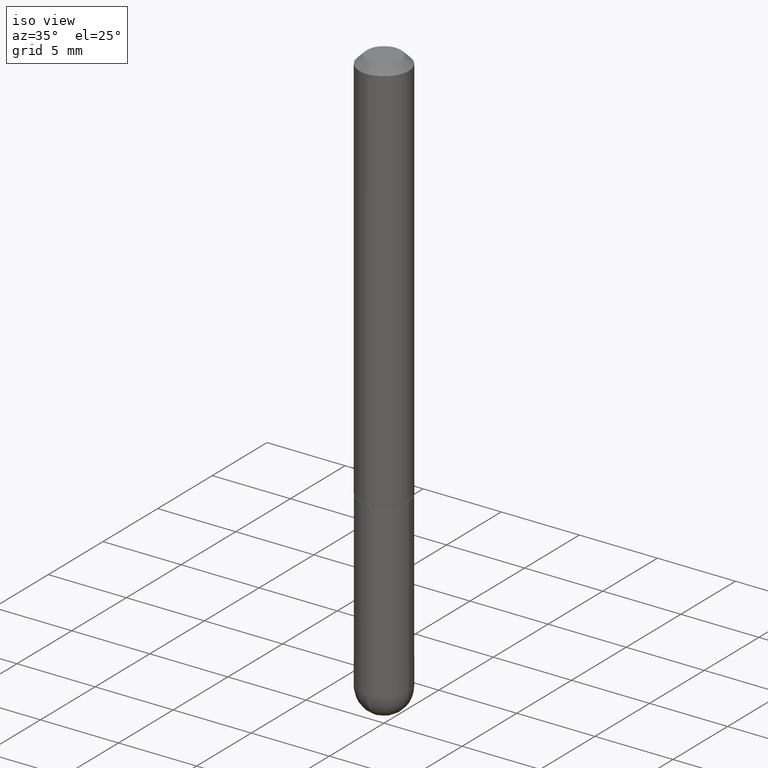
[diagram: clean part render]
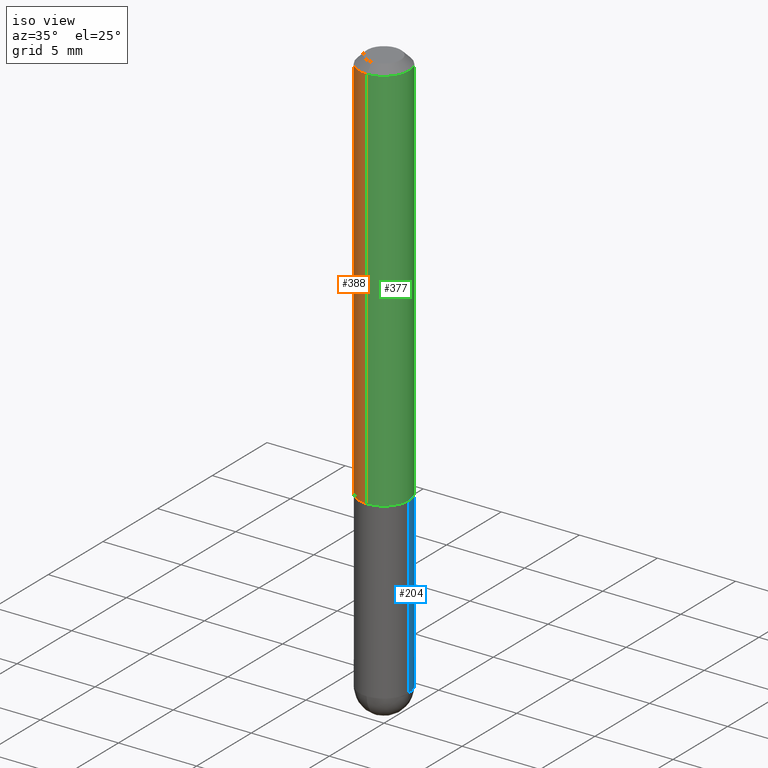
[diagram: same view with three faces highlighted in distinct colors, each labeled with its STEP entity id]
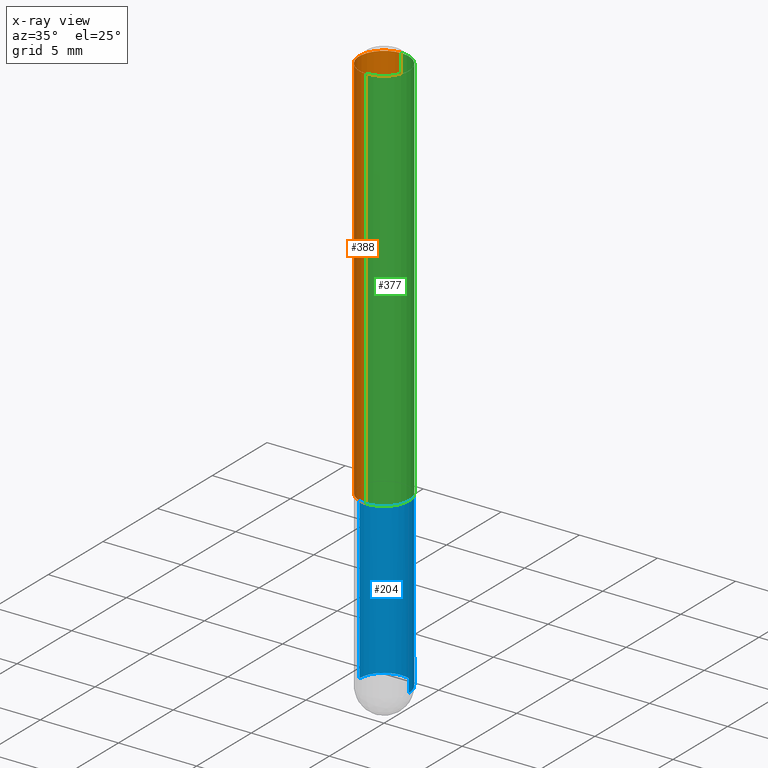
[diagram: x-ray of the same camera — body ghosted, the three highlighted faces saturated]
A machine part, iso view with three faces highlighted in distinct colors.
The next image is the same camera in x-ray (body ghosted, the three faces saturated) — at least one of them is partly hidden behind the body in this view.
Their STEP definitions:

[orange] entity #388 — the highlighted cylindrical surface (edge-blend (fillet) strip) has radius 1.5875 mm, axis along (-0, 0, 1).
#21 = VERTEX_POINT ( 'NONE', #84 ) ;
#22 = ORIENTED_EDGE ( 'NONE', *, *, #394, .T. ) ;
#24 = DIRECTION ( 'NONE',  ( -2.453213519139467542E-29, 3.480390469090857186E-15, 1.000000000000000000 ) ) ;
#52 = AXIS2_PLACEMENT_3D ( 'NONE', #67, #196, #380 ) ;
#67 = CARTESIAN_POINT ( 'NONE',  ( 4.906427038278943738E-31, -6.960780938181726057E-17, -0.02000000000000003511 ) ) ;
#69 = CIRCLE ( 'NONE', #52, 0.06249999999999997918 ) ;
#84 = CARTESIAN_POINT ( 'NONE',  ( 4.364351673553919652E-16, 0.06249999999999991673, -0.02000000000000025022 ) ) ;
#85 = VERTEX_POINT ( 'NONE', #119 ) ;
#87 = LINE ( 'NONE', #186, #396 ) ;
#93 = DIRECTION ( 'NONE',  ( -6.982962677686266711E-15, -1.000000000000000000, 3.480390469090857580E-15 ) ) ;
#99 = FACE_OUTER_BOUND ( 'NONE', #384, .T. ) ;
#101 = ORIENTED_EDGE ( 'NONE', *, *, #192, .F. ) ;
#112 = AXIS2_PLACEMENT_3D ( 'NONE', #228, #412, #93 ) ;
#119 = CARTESIAN_POINT ( 'NONE',  ( -4.364351673553676585E-16, -0.06250000000000355271, -0.9989999999999998881 ) ) ;
#126 = LINE ( 'NONE', #258, #152 ) ;
#146 = ORIENTED_EDGE ( 'NONE', *, *, #395, .F. ) ;
#152 = VECTOR ( 'NONE', #349, 39.37007874015748143 ) ;
#186 = CARTESIAN_POINT ( 'NONE',  ( 4.440892098500628134E-16, 0.06250000000000002776, -2.175244043181786974E-16 ) ) ;
#192 = EDGE_CURVE ( 'NONE', #342, #21, #87, .T. ) ;
#196 = DIRECTION ( 'NONE',  ( -2.453213519139467542E-29, 3.480390469090857186E-15, 1.000000000000000000 ) ) ;
#205 = DIRECTION ( 'NONE',  ( -6.982962677686266711E-15, -1.000000000000000000, 4.370956789862816416E-15 ) ) ;
#214 = ORIENTED_EDGE ( 'NONE', *, *, #313, .T. ) ;
#223 = CYLINDRICAL_SURFACE ( 'NONE', #112, 0.06250000000000002776 ) ;
#228 = CARTESIAN_POINT ( 'NONE',  ( 0.000000000000000000, 0.000000000000000000, 0.000000000000000000 ) ) ;
#231 = VERTEX_POINT ( 'NONE', #269 ) ;
#251 = CARTESIAN_POINT ( 'NONE',  ( 4.440892098500754352E-16, 0.06249999999999659994, -0.9990000000000004432 ) ) ;
#258 = CARTESIAN_POINT ( 'NONE',  ( -4.364351673553918666E-16, -0.06250000000000002776, 2.175244043181786974E-16 ) ) ;
#269 = CARTESIAN_POINT ( 'NONE',  ( -4.287811248607200817E-16, -0.06250000000000005551, -0.01999999999999981654 ) ) ;
#296 = CARTESIAN_POINT ( 'NONE',  ( 2.450760305620328687E-29, -3.476910078621766829E-15, -0.9990000000000002212 ) ) ;
#297 = DIRECTION ( 'NONE',  ( -2.453213519139467542E-29, 3.480390469090857186E-15, 1.000000000000000000 ) ) ;
#313 = EDGE_CURVE ( 'NONE', #342, #85, #400, .T. ) ;
#342 = VERTEX_POINT ( 'NONE', #251 ) ;
#349 = DIRECTION ( 'NONE',  ( -2.453213519139467542E-29, 3.480390469090857186E-15, 1.000000000000000000 ) ) ;
#366 = AXIS2_PLACEMENT_3D ( 'NONE', #296, #297, #205 ) ;
#380 = DIRECTION ( 'NONE',  ( -6.982962677686265922E-15, -1.000000000000000000, 3.483106191921936738E-15 ) ) ;
#384 = EDGE_LOOP ( 'NONE', ( #101, #214, #22, #146 ) ) ;
#388 = ADVANCED_FACE ( 'NONE', ( #99 ), #223, .T. ) ;
#394 = EDGE_CURVE ( 'NONE', #85, #231, #126, .T. ) ;
#395 = EDGE_CURVE ( 'NONE', #21, #231, #69, .T. ) ;
#396 = VECTOR ( 'NONE', #24, 39.37007874015748143 ) ;
#400 = CIRCLE ( 'NONE', #366, 0.06250000000000006939 ) ;
#412 = DIRECTION ( 'NONE',  ( -2.453213519139467542E-29, 3.480390469090857186E-15, 1.000000000000000000 ) ) ;

[blue] entity #204 — the highlighted cylindrical surface (edge-blend (fillet) strip) has radius 1.5875 mm, axis along (-0, 0, 1).
#10 = EDGE_CURVE ( 'NONE', #211, #109, #16, .T. ) ;
#11 = DIRECTION ( 'NONE',  ( -2.445468806185136597E-29, 3.491481338843145583E-15, 1.000000000000000000 ) ) ;
#16 = LINE ( 'NONE', #210, #79 ) ;
#27 = CARTESIAN_POINT ( 'NONE',  ( 0.06249999999999997918, -3.927916506198537646E-15, -1.000000000000000222 ) ) ;
#31 = DIRECTION ( 'NONE',  ( -2.445468806185136597E-29, 3.491481338843145583E-15, 1.000000000000000000 ) ) ;
#40 = AXIS2_PLACEMENT_3D ( 'NONE', #64, #31, #156 ) ;
#42 = CARTESIAN_POINT ( 'NONE',  ( 3.515361408891134418E-29, -5.019004424587023131E-15, -1.437500000000000222 ) ) ;
#64 = CARTESIAN_POINT ( 'NONE',  ( 3.515361408891134418E-29, -5.019004424587023131E-15, -1.437500000000000222 ) ) ;
#66 = LINE ( 'NONE', #195, #137 ) ;
#68 = ORIENTED_EDGE ( 'NONE', *, *, #378, .T. ) ;
#78 = ORIENTED_EDGE ( 'NONE', *, *, #10, .F. ) ;
#79 = VECTOR ( 'NONE', #408, 39.37007874015748143 ) ;
#83 = DIRECTION ( 'NONE',  ( 1.000000000000000000, -6.982962677686265133E-15, 0.000000000000000000 ) ) ;
#91 = CARTESIAN_POINT ( 'NONE',  ( 0.000000000000000000, 0.000000000000000000, 0.000000000000000000 ) ) ;
#109 = VERTEX_POINT ( 'NONE', #27 ) ;
#114 = EDGE_LOOP ( 'NONE', ( #68, #393, #305, #78, #401 ) ) ;
#118 = CYLINDRICAL_SURFACE ( 'NONE', #353, 0.06249999999999997918 ) ;
#120 = VERTEX_POINT ( 'NONE', #222 ) ;
#128 = EDGE_CURVE ( 'NONE', #109, #266, #302, .T. ) ;
#137 = VECTOR ( 'NONE', #159, 39.37007874015748143 ) ;
#153 = FACE_OUTER_BOUND ( 'NONE', #114, .T. ) ;
#156 = DIRECTION ( 'NONE',  ( 1.000000000000000000, -6.982962677686265133E-15, 0.000000000000000000 ) ) ;
#159 = DIRECTION ( 'NONE',  ( -2.445468806185136877E-29, 3.491481338843145188E-15, 1.000000000000000000 ) ) ;
#160 = AXIS2_PLACEMENT_3D ( 'NONE', #256, #381, #216 ) ;
#161 = AXIS2_PLACEMENT_3D ( 'NONE', #42, #11, #83 ) ;
#164 = CARTESIAN_POINT ( 'NONE',  ( 4.364351673554257876E-16, 0.06249999999999484440, -1.437500000000000444 ) ) ;
#169 = CARTESIAN_POINT ( 'NONE',  ( -0.06249999999999997918, -3.811153671865022332E-15, -1.000000000000000222 ) ) ;
#195 = CARTESIAN_POINT ( 'NONE',  ( -0.06249999999999997918, 4.440892098500624683E-16, -3.074334431409315413E-30 ) ) ;
#204 = ADVANCED_FACE ( 'NONE', ( #153 ), #118, .T. ) ;
#210 = CARTESIAN_POINT ( 'NONE',  ( 0.06249999999999997918, -4.364351673553915708E-16, 3.047610484872459170E-30 ) ) ;
#211 = VERTEX_POINT ( 'NONE', #344 ) ;
#216 = DIRECTION ( 'NONE',  ( 1.000000000000000000, -6.982962677686265133E-15, 0.000000000000000000 ) ) ;
#220 = DIRECTION ( 'NONE',  ( 1.000000000000000000, -6.982962677686267499E-15, 4.876176775795936353E-29 ) ) ;
#222 = CARTESIAN_POINT ( 'NONE',  ( -0.06249999999999997918, -3.811153671865022332E-15, -1.437500000000000222 ) ) ;
#249 = DIRECTION ( 'NONE',  ( -2.445468806185136597E-29, 3.491481338843145583E-15, 1.000000000000000000 ) ) ;
#255 = EDGE_CURVE ( 'NONE', #120, #266, #66, .T. ) ;
#256 = CARTESIAN_POINT ( 'NONE',  ( 2.445468806185136877E-29, -3.491481338843145977E-15, -1.000000000000000222 ) ) ;
#261 = CIRCLE ( 'NONE', #40, 0.06249999999999997918 ) ;
#266 = VERTEX_POINT ( 'NONE', #169 ) ;
#302 = CIRCLE ( 'NONE', #160, 0.06249999999999997918 ) ;
#305 = ORIENTED_EDGE ( 'NONE', *, *, #128, .F. ) ;
#311 = VERTEX_POINT ( 'NONE', #164 ) ;
#333 = EDGE_CURVE ( 'NONE', #211, #311, #387, .T. ) ;
#344 = CARTESIAN_POINT ( 'NONE',  ( 0.06249999999999997918, -4.691678049070475040E-15, -1.437500000000000222 ) ) ;
#353 = AXIS2_PLACEMENT_3D ( 'NONE', #91, #249, #220 ) ;
#378 = EDGE_CURVE ( 'NONE', #311, #120, #261, .T. ) ;
#381 = DIRECTION ( 'NONE',  ( -2.445468806185136597E-29, 3.491481338843145583E-15, 1.000000000000000000 ) ) ;
#387 = CIRCLE ( 'NONE', #161, 0.06249999999999997918 ) ;
#393 = ORIENTED_EDGE ( 'NONE', *, *, #255, .T. ) ;
#401 = ORIENTED_EDGE ( 'NONE', *, *, #333, .T. ) ;
#408 = DIRECTION ( 'NONE',  ( -2.445468806185136877E-29, 3.491481338843145188E-15, 1.000000000000000000 ) ) ;

[green] entity #377 — the highlighted cylindrical surface (edge-blend (fillet) strip) has radius 1.5875 mm, axis along (-0, 0, 1).
#5 = DIRECTION ( 'NONE',  ( -6.982962677686265922E-15, -1.000000000000000000, 3.483106191921936738E-15 ) ) ;
#19 = DIRECTION ( 'NONE',  ( -2.453213519139467542E-29, 3.480390469090857186E-15, 1.000000000000000000 ) ) ;
#21 = VERTEX_POINT ( 'NONE', #84 ) ;
#24 = DIRECTION ( 'NONE',  ( -2.453213519139467542E-29, 3.480390469090857186E-15, 1.000000000000000000 ) ) ;
#28 = DIRECTION ( 'NONE',  ( -6.982962677686266711E-15, -1.000000000000000000, 3.480390469090857580E-15 ) ) ;
#48 = CYLINDRICAL_SURFACE ( 'NONE', #332, 0.06250000000000002776 ) ;
#59 = DIRECTION ( 'NONE',  ( -6.982962677686266711E-15, -1.000000000000000000, 4.370956789862816416E-15 ) ) ;
#84 = CARTESIAN_POINT ( 'NONE',  ( 4.364351673553919652E-16, 0.06249999999999991673, -0.02000000000000025022 ) ) ;
#85 = VERTEX_POINT ( 'NONE', #119 ) ;
#87 = LINE ( 'NONE', #186, #396 ) ;
#96 = FACE_OUTER_BOUND ( 'NONE', #372, .T. ) ;
#102 = CARTESIAN_POINT ( 'NONE',  ( 4.906427038278943738E-31, -6.960780938181726057E-17, -0.02000000000000003511 ) ) ;
#104 = AXIS2_PLACEMENT_3D ( 'NONE', #102, #238, #5 ) ;
#119 = CARTESIAN_POINT ( 'NONE',  ( -4.364351673553676585E-16, -0.06250000000000355271, -0.9989999999999998881 ) ) ;
#126 = LINE ( 'NONE', #258, #152 ) ;
#135 = ORIENTED_EDGE ( 'NONE', *, *, #348, .T. ) ;
#150 = CARTESIAN_POINT ( 'NONE',  ( 2.450760305620328687E-29, -3.476910078621766829E-15, -0.9990000000000002212 ) ) ;
#152 = VECTOR ( 'NONE', #349, 39.37007874015748143 ) ;
#166 = ORIENTED_EDGE ( 'NONE', *, *, #324, .F. ) ;
#178 = CARTESIAN_POINT ( 'NONE',  ( 0.000000000000000000, 0.000000000000000000, 0.000000000000000000 ) ) ;
#181 = CIRCLE ( 'NONE', #407, 0.06250000000000006939 ) ;
#186 = CARTESIAN_POINT ( 'NONE',  ( 4.440892098500628134E-16, 0.06250000000000002776, -2.175244043181786974E-16 ) ) ;
#192 = EDGE_CURVE ( 'NONE', #342, #21, #87, .T. ) ;
#231 = VERTEX_POINT ( 'NONE', #269 ) ;
#238 = DIRECTION ( 'NONE',  ( -2.453213519139467542E-29, 3.480390469090857186E-15, 1.000000000000000000 ) ) ;
#251 = CARTESIAN_POINT ( 'NONE',  ( 4.440892098500754352E-16, 0.06249999999999659994, -0.9990000000000004432 ) ) ;
#258 = CARTESIAN_POINT ( 'NONE',  ( -4.364351673553918666E-16, -0.06250000000000002776, 2.175244043181786974E-16 ) ) ;
#269 = CARTESIAN_POINT ( 'NONE',  ( -4.287811248607200817E-16, -0.06250000000000005551, -0.01999999999999981654 ) ) ;
#272 = ORIENTED_EDGE ( 'NONE', *, *, #394, .F. ) ;
#299 = CIRCLE ( 'NONE', #104, 0.06249999999999997918 ) ;
#324 = EDGE_CURVE ( 'NONE', #231, #21, #299, .T. ) ;
#332 = AXIS2_PLACEMENT_3D ( 'NONE', #178, #19, #28 ) ;
#342 = VERTEX_POINT ( 'NONE', #251 ) ;
#348 = EDGE_CURVE ( 'NONE', #85, #342, #181, .T. ) ;
#349 = DIRECTION ( 'NONE',  ( -2.453213519139467542E-29, 3.480390469090857186E-15, 1.000000000000000000 ) ) ;
#351 = ORIENTED_EDGE ( 'NONE', *, *, #192, .T. ) ;
#372 = EDGE_LOOP ( 'NONE', ( #135, #351, #166, #272 ) ) ;
#373 = DIRECTION ( 'NONE',  ( -2.453213519139467542E-29, 3.480390469090857186E-15, 1.000000000000000000 ) ) ;
#377 = ADVANCED_FACE ( 'NONE', ( #96 ), #48, .T. ) ;
#394 = EDGE_CURVE ( 'NONE', #85, #231, #126, .T. ) ;
#396 = VECTOR ( 'NONE', #24, 39.37007874015748143 ) ;
#407 = AXIS2_PLACEMENT_3D ( 'NONE', #150, #373, #59 ) ;